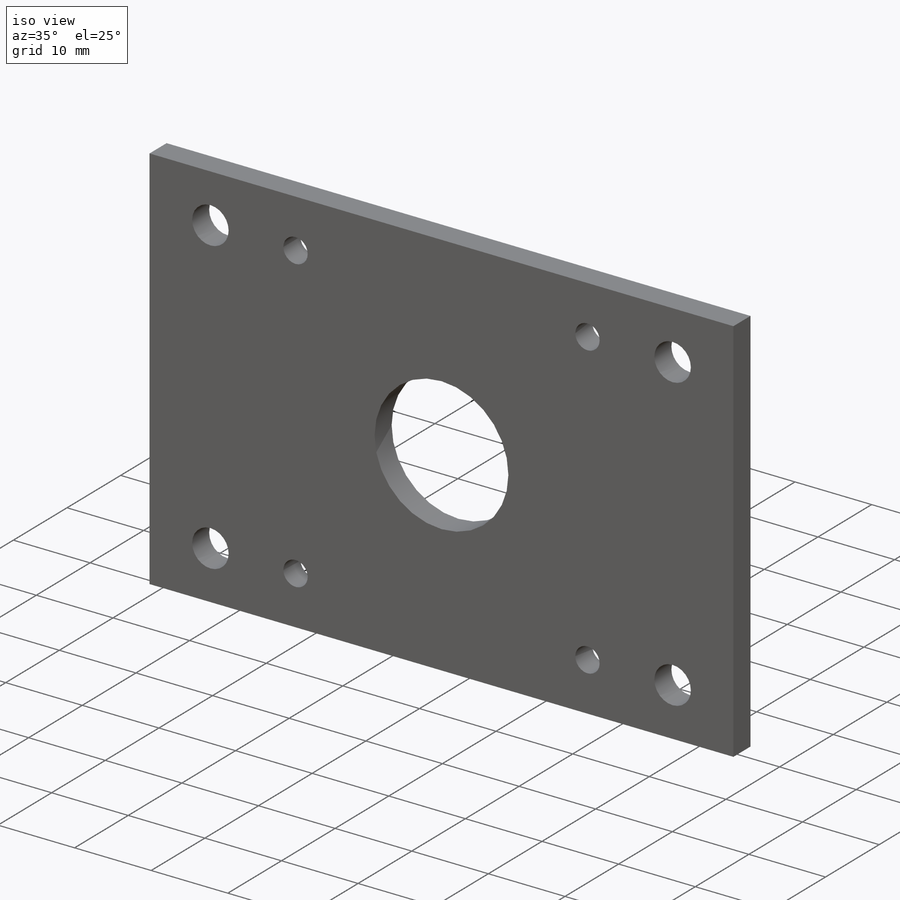
[diagram: iso view]
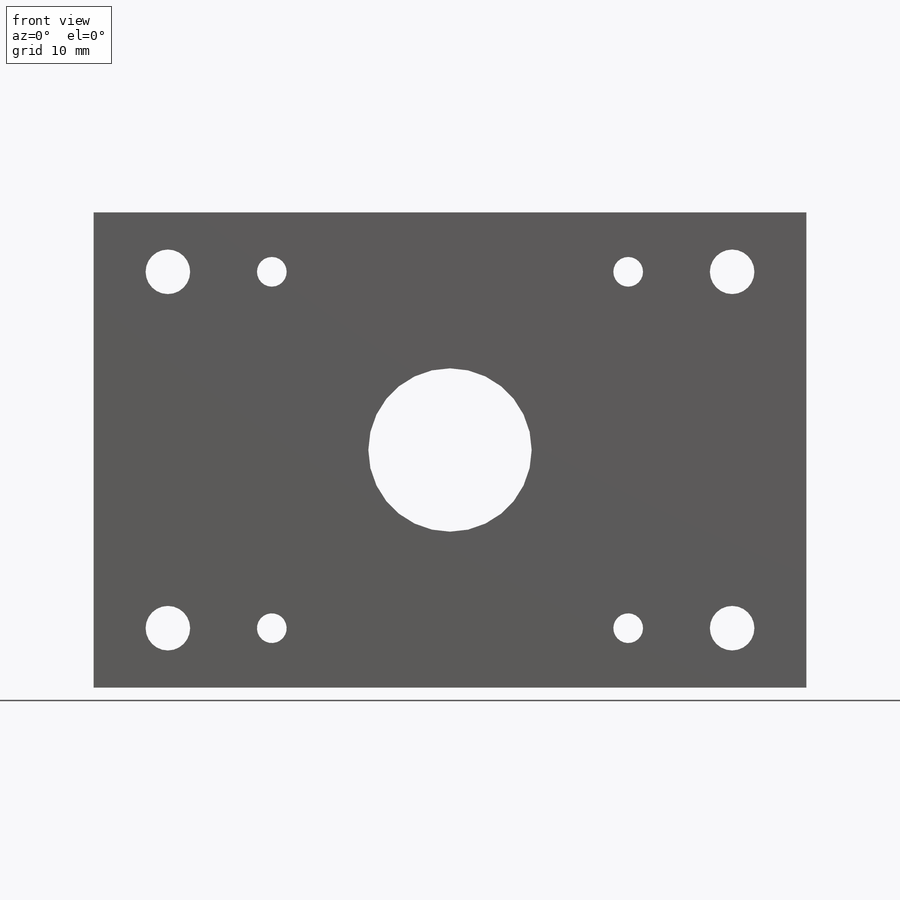
[diagram: front view]
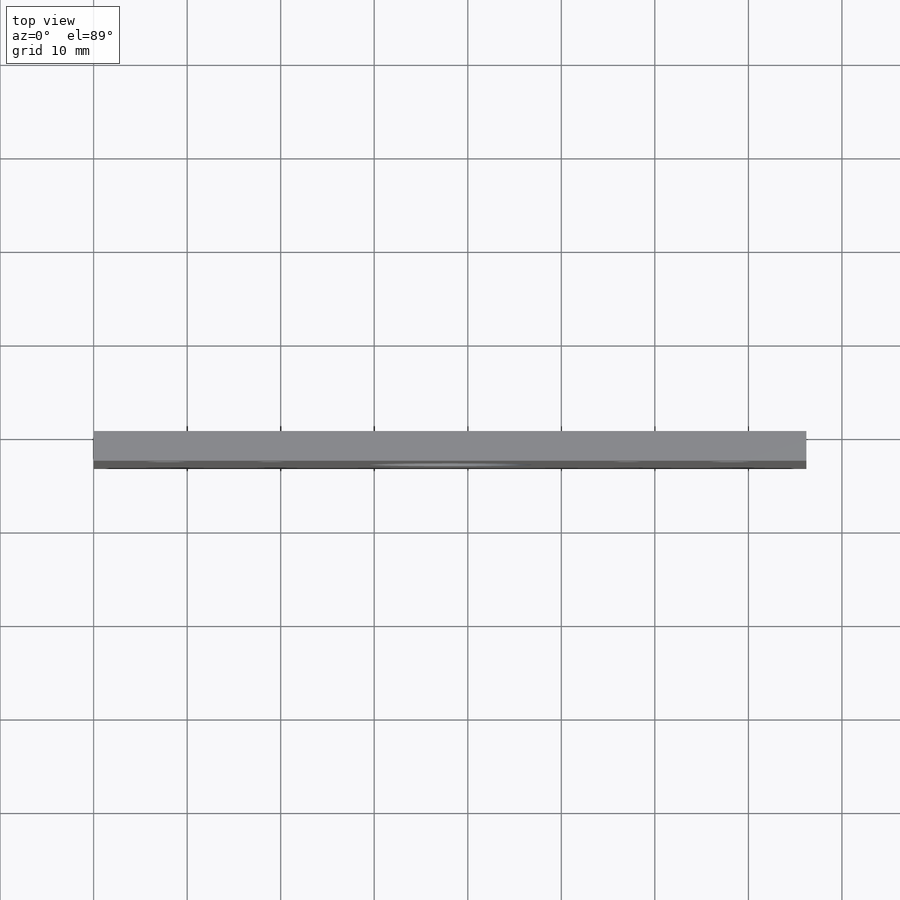
[diagram: top view]
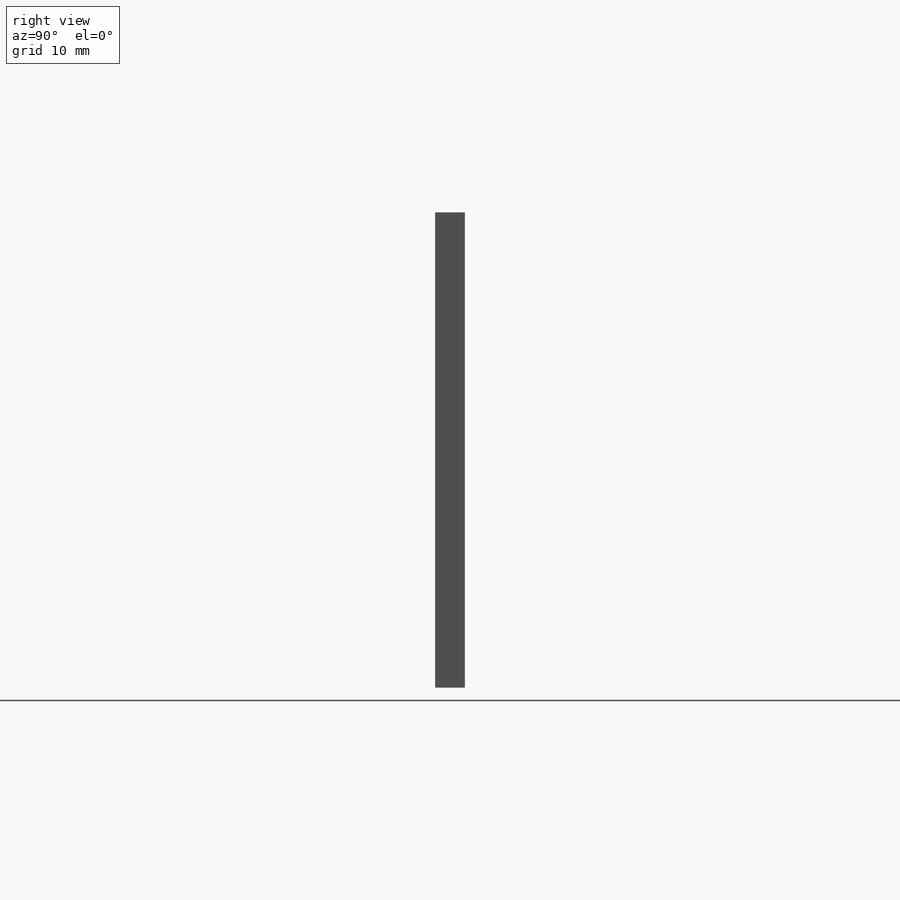
[diagram: right view]
SOLIDWORKS PART (.sldprt)
format: sldprt  version: not decoded by parser v0  size: 253,952 bytes
history: native  units: mm
features: sketch x5, cut_extrude x3, plane x2, mirror x2, material x1, extrude x1 (+13 scaffold rows collapsed)
feature tree (27):
  scaffold x13  (default folders/planes/origin — collapsed)
  material  "Material <not specified>"
  sketch  "Sketch1"  dims[D1=50.8mm D2=76.2mm]
  extrude  "Boss-Extrude1"  Depth=6.35mm
  sketch  "Sketch2"  dims[D1=17.4625mm]
  sketch  "Sketch3"  dims[D1=4.7625mm D2=7.9375mm D3=6.35mm]
  cut_extrude  "Cut-Extrude6"  [1 undecoded]
  sketch  "Sketch4"
  plane  "Plane1"
  mirror  "Mirror1"
  plane  "Plane2"
  mirror  "Mirror2"
  cut_extrude  "Cut-Extrude7"  [1 undecoded]
  sketch  "Sketch5"  dims[D1=3.175mm D2=3.175mm D3=3.175mm D4=3.175mm]
  cut_extrude  "Cut-Extrude8"  [1 undecoded]
decode coverage: 5 of 11 modeling features carry decoded parameters
note: 3 parameter values undecoded
summary: no parameter record found for 3 features
note: suppression state not decoded; provenance and decode notes live in map.json
